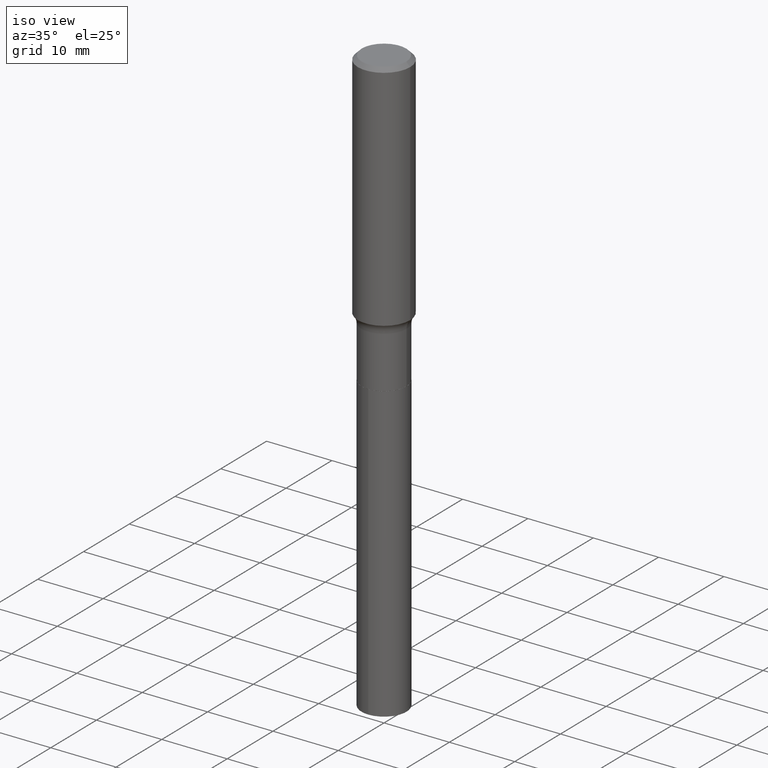
[diagram: clean part render]
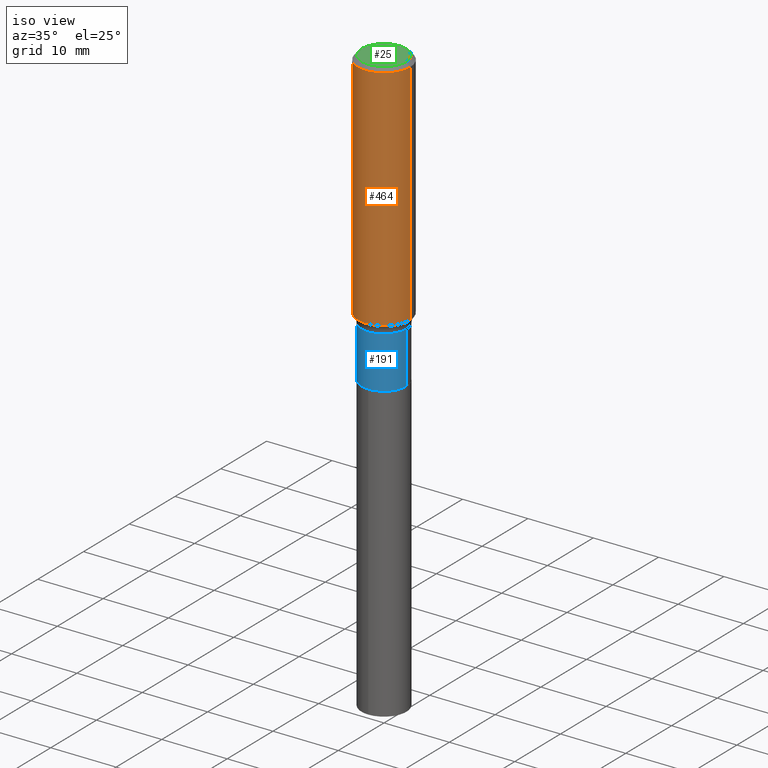
[diagram: same view with three faces highlighted in distinct colors, each labeled with its STEP entity id]
A machine part, iso view with three faces highlighted in distinct colors.
Their STEP definitions:

[orange] entity #464 — the highlighted cylindrical surface (edge-blend (fillet) strip) has radius 4.0005 mm, axis along (-0, 0, 1).
#1 = VERTEX_POINT ( 'NONE', #352 ) ;
#2 = CARTESIAN_POINT ( 'NONE',  ( -0.1575000000000001676, -3.773744865766396882E-15, -1.401367843543948277 ) ) ;
#17 = AXIS2_PLACEMENT_3D ( 'NONE', #337, #143, #492 ) ;
#32 = EDGE_CURVE ( 'NONE', #400, #1, #244, .T. ) ;
#36 = CARTESIAN_POINT ( 'NONE',  ( 0.1575000000000000011, -1.182302868365756679E-15, -0.02362500000000014588 ) ) ;
#47 = AXIS2_PLACEMENT_3D ( 'NONE', #82, #316, #194 ) ;
#49 = VECTOR ( 'NONE', #329, 39.37007874015748143 ) ;
#65 = CARTESIAN_POINT ( 'NONE',  ( 0.1575000000000000844, -1.099816621735587677E-15, 7.679978421878603638E-30 ) ) ;
#82 = CARTESIAN_POINT ( 'NONE',  ( 3.427001347377658773E-29, -4.892849674588556064E-15, -1.401367843543948277 ) ) ;
#101 = LINE ( 'NONE', #65, #49 ) ;
#113 = LINE ( 'NONE', #303, #430 ) ;
#117 = EDGE_LOOP ( 'NONE', ( #397, #426, #246, #423 ) ) ;
#143 = DIRECTION ( 'NONE',  ( -2.445468806185136597E-29, 3.491481338843145583E-15, 1.000000000000000000 ) ) ;
#194 = DIRECTION ( 'NONE',  ( 1.000000000000000000, -6.982962677686267499E-15, 0.000000000000000000 ) ) ;
#244 = CIRCLE ( 'NONE', #47, 0.1575000000000001676 ) ;
#246 = ORIENTED_EDGE ( 'NONE', *, *, #275, .T. ) ;
#258 = CARTESIAN_POINT ( 'NONE',  ( 5.777420054612421104E-31, -8.248624663016984002E-17, -0.02362500000000014588 ) ) ;
#275 = EDGE_CURVE ( 'NONE', #1, #411, #101, .T. ) ;
#276 = AXIS2_PLACEMENT_3D ( 'NONE', #258, #344, #309 ) ;
#296 = CARTESIAN_POINT ( 'NONE',  ( -0.1575000000000000011, -1.368563151787204140E-15, -0.02362500000000014588 ) ) ;
#298 = FACE_OUTER_BOUND ( 'NONE', #117, .T. ) ;
#303 = CARTESIAN_POINT ( 'NONE',  ( -0.1575000000000000844, 1.119104808822158392E-15, -7.747322767151481189E-30 ) ) ;
#309 = DIRECTION ( 'NONE',  ( 1.000000000000000000, -6.982962677686265922E-15, 0.000000000000000000 ) ) ;
#316 = DIRECTION ( 'NONE',  ( -2.445468806185136597E-29, 3.491481338843145583E-15, 1.000000000000000000 ) ) ;
#329 = DIRECTION ( 'NONE',  ( -2.445468806185136877E-29, 3.491481338843145188E-15, 1.000000000000000000 ) ) ;
#337 = CARTESIAN_POINT ( 'NONE',  ( 0.000000000000000000, 0.000000000000000000, 0.000000000000000000 ) ) ;
#344 = DIRECTION ( 'NONE',  ( -2.445468806185136597E-29, 3.491481338843145583E-15, 1.000000000000000000 ) ) ;
#352 = CARTESIAN_POINT ( 'NONE',  ( 0.1575000000000001676, -5.992666296324145122E-15, -1.401367843543948277 ) ) ;
#355 = VERTEX_POINT ( 'NONE', #296 ) ;
#362 = EDGE_CURVE ( 'NONE', #355, #411, #465, .T. ) ;
#397 = ORIENTED_EDGE ( 'NONE', *, *, #468, .F. ) ;
#400 = VERTEX_POINT ( 'NONE', #2 ) ;
#411 = VERTEX_POINT ( 'NONE', #36 ) ;
#423 = ORIENTED_EDGE ( 'NONE', *, *, #362, .F. ) ;
#426 = ORIENTED_EDGE ( 'NONE', *, *, #32, .T. ) ;
#430 = VECTOR ( 'NONE', #450, 39.37007874015748143 ) ;
#448 = CYLINDRICAL_SURFACE ( 'NONE', #17, 0.1575000000000000844 ) ;
#450 = DIRECTION ( 'NONE',  ( -2.445468806185136877E-29, 3.491481338843145188E-15, 1.000000000000000000 ) ) ;
#464 = ADVANCED_FACE ( 'NONE', ( #298 ), #448, .T. ) ;
#465 = CIRCLE ( 'NONE', #276, 0.1575000000000000011 ) ;
#468 = EDGE_CURVE ( 'NONE', #400, #355, #113, .T. ) ;
#492 = DIRECTION ( 'NONE',  ( 1.000000000000000000, -6.982962677686267499E-15, 4.876176775795936353E-29 ) ) ;

[blue] entity #191 — the highlighted cylindrical surface (edge-blend (fillet) strip) has radius 3.4506 mm, axis along (-0, 0, 1).
#7 = CIRCLE ( 'NONE', #168, 0.1358499999999999708 ) ;
#10 = LINE ( 'NONE', #126, #236 ) ;
#21 = FACE_OUTER_BOUND ( 'NONE', #310, .T. ) ;
#29 = EDGE_CURVE ( 'NONE', #37, #221, #10, .T. ) ;
#37 = VERTEX_POINT ( 'NONE', #461 ) ;
#54 = CARTESIAN_POINT ( 'NONE',  ( -0.1358499999999999708, -4.660551574747864359E-15, -1.455299999999999816 ) ) ;
#62 = DIRECTION ( 'NONE',  ( -2.445468806185136877E-29, 3.491481338843145188E-15, 1.000000000000000000 ) ) ;
#63 = EDGE_CURVE ( 'NONE', #136, #221, #7, .T. ) ;
#75 = CARTESIAN_POINT ( 'NONE',  ( 4.321877021170992240E-29, -6.170494970137492639E-15, -1.767300000000000315 ) ) ;
#84 = CARTESIAN_POINT ( 'NONE',  ( 3.558890753641229295E-29, -5.081152792418429447E-15, -1.455299999999999816 ) ) ;
#93 = CARTESIAN_POINT ( 'NONE',  ( -0.1358500000000000263, -4.660551574747864359E-15, -1.767300000000000315 ) ) ;
#96 = DIRECTION ( 'NONE',  ( -2.445468806185136597E-29, 3.491481338843145583E-15, 1.000000000000000000 ) ) ;
#111 = ORIENTED_EDGE ( 'NONE', *, *, #232, .F. ) ;
#126 = CARTESIAN_POINT ( 'NONE',  ( 0.1358499999999999708, -9.486354797636791575E-16, 6.624286149918777895E-30 ) ) ;
#136 = VERTEX_POINT ( 'NONE', #54 ) ;
#145 = DIRECTION ( 'NONE',  ( -2.445468806185136597E-29, 3.491481338843145583E-15, 1.000000000000000000 ) ) ;
#168 = AXIS2_PLACEMENT_3D ( 'NONE', #84, #239, #394 ) ;
#187 = DIRECTION ( 'NONE',  ( 1.000000000000000000, -6.982962677686268288E-15, 0.000000000000000000 ) ) ;
#191 = ADVANCED_FACE ( 'NONE', ( #21 ), #290, .T. ) ;
#202 = DIRECTION ( 'NONE',  ( -2.445468806185136877E-29, 3.491481338843145188E-15, 1.000000000000000000 ) ) ;
#212 = CARTESIAN_POINT ( 'NONE',  ( -0.1358499999999999708, 9.652723065300958949E-16, -6.682373320111289082E-30 ) ) ;
#217 = DIRECTION ( 'NONE',  ( 1.000000000000000000, -6.982962677686266711E-15, 4.876176775795936353E-29 ) ) ;
#218 = VERTEX_POINT ( 'NONE', #93 ) ;
#221 = VERTEX_POINT ( 'NONE', #368 ) ;
#227 = AXIS2_PLACEMENT_3D ( 'NONE', #75, #145, #187 ) ;
#232 = EDGE_CURVE ( 'NONE', #218, #136, #476, .T. ) ;
#236 = VECTOR ( 'NONE', #202, 39.37007874015748143 ) ;
#239 = DIRECTION ( 'NONE',  ( -2.445468806185136597E-29, 3.491481338843145583E-15, 1.000000000000000000 ) ) ;
#290 = CYLINDRICAL_SURFACE ( 'NONE', #366, 0.1358499999999999708 ) ;
#294 = ORIENTED_EDGE ( 'NONE', *, *, #63, .F. ) ;
#310 = EDGE_LOOP ( 'NONE', ( #111, #486, #458, #294 ) ) ;
#320 = VECTOR ( 'NONE', #62, 39.37007874015748143 ) ;
#323 = EDGE_CURVE ( 'NONE', #218, #37, #332, .T. ) ;
#332 = CIRCLE ( 'NONE', #227, 0.1358499999999999985 ) ;
#366 = AXIS2_PLACEMENT_3D ( 'NONE', #402, #96, #217 ) ;
#368 = CARTESIAN_POINT ( 'NONE',  ( 0.1358499999999999708, -6.029788272182108407E-15, -1.455299999999999816 ) ) ;
#394 = DIRECTION ( 'NONE',  ( 1.000000000000000000, -6.982962677686262766E-15, 0.000000000000000000 ) ) ;
#402 = CARTESIAN_POINT ( 'NONE',  ( 0.000000000000000000, 0.000000000000000000, 0.000000000000000000 ) ) ;
#458 = ORIENTED_EDGE ( 'NONE', *, *, #29, .T. ) ;
#461 = CARTESIAN_POINT ( 'NONE',  ( 0.1358499999999999985, -7.119130449901172388E-15, -1.767300000000000315 ) ) ;
#476 = LINE ( 'NONE', #212, #320 ) ;
#486 = ORIENTED_EDGE ( 'NONE', *, *, #323, .T. ) ;

[green] entity #25 — the highlighted planar face has unit normal (0, -0, -1).
#25 = ADVANCED_FACE ( 'NONE', ( #206 ), #363, .F. ) ;
#61 = VERTEX_POINT ( 'NONE', #274 ) ;
#66 = DIRECTION ( 'NONE',  ( 1.000000000000000000, -6.982962677686266711E-15, 4.876170806578254279E-29 ) ) ;
#71 = CARTESIAN_POINT ( 'NONE',  ( -1.002970424325033577E-46, 1.431975951230896486E-32, 4.101342130344485961E-18 ) ) ;
#128 = CARTESIAN_POINT ( 'NONE',  ( -5.014852121625167883E-47, 7.159879756154482429E-33, 2.050671065172242981E-18 ) ) ;
#142 = AXIS2_PLACEMENT_3D ( 'NONE', #399, #331, #66 ) ;
#146 = ORIENTED_EDGE ( 'NONE', *, *, #295, .T. ) ;
#156 = VERTEX_POINT ( 'NONE', #163 ) ;
#157 = AXIS2_PLACEMENT_3D ( 'NONE', #128, #395, #428 ) ;
#163 = CARTESIAN_POINT ( 'NONE',  ( 0.1338749999999999940, -1.040731925365424925E-15, 4.101342130351393887E-18 ) ) ;
#174 = AXIS2_PLACEMENT_3D ( 'NONE', #71, #422, #335 ) ;
#186 = EDGE_LOOP ( 'NONE', ( #307, #146 ) ) ;
#206 = FACE_OUTER_BOUND ( 'NONE', #186, .T. ) ;
#274 = CARTESIAN_POINT ( 'NONE',  ( -0.1338749999999999940, 9.760872517903331886E-16, 4.101342130337804525E-18 ) ) ;
#295 = EDGE_CURVE ( 'NONE', #156, #61, #392, .T. ) ;
#307 = ORIENTED_EDGE ( 'NONE', *, *, #376, .T. ) ;
#331 = DIRECTION ( 'NONE',  ( -2.445468806185136597E-29, 3.491481338843145583E-15, 1.000000000000000000 ) ) ;
#335 = DIRECTION ( 'NONE',  ( 1.000000000000000000, -6.982962677686266711E-15, 4.876170806578254279E-29 ) ) ;
#363 = PLANE ( 'NONE',  #157 ) ;
#376 = EDGE_CURVE ( 'NONE', #61, #156, #404, .T. ) ;
#392 = CIRCLE ( 'NONE', #142, 0.1338749999999999940 ) ;
#395 = DIRECTION ( 'NONE',  ( 2.438088387897960049E-29, -3.491481338843145188E-15, -1.000000000000000000 ) ) ;
#399 = CARTESIAN_POINT ( 'NONE',  ( -1.002970424325033577E-46, 1.431975951230896486E-32, 4.101342130344485961E-18 ) ) ;
#404 = CIRCLE ( 'NONE', #174, 0.1338749999999999940 ) ;
#422 = DIRECTION ( 'NONE',  ( -2.445468806185136597E-29, 3.491481338843145583E-15, 1.000000000000000000 ) ) ;
#428 = DIRECTION ( 'NONE',  ( -1.000000000000000000, 6.982962677686265922E-15, -4.876176775795935793E-29 ) ) ;